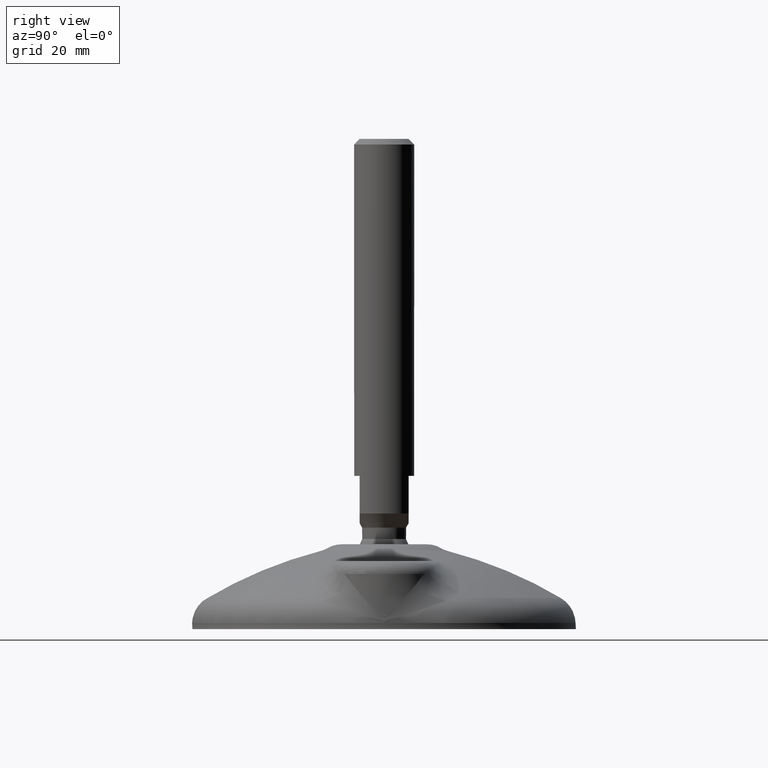
[diagram: clean part render]
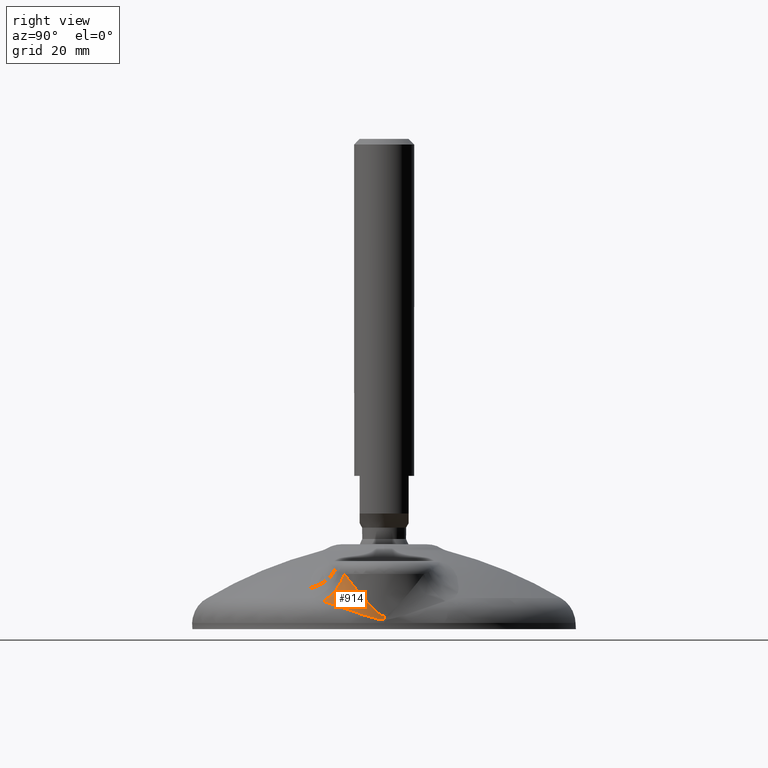
[diagram: same view with one face highlighted and labeled with its STEP entity id]
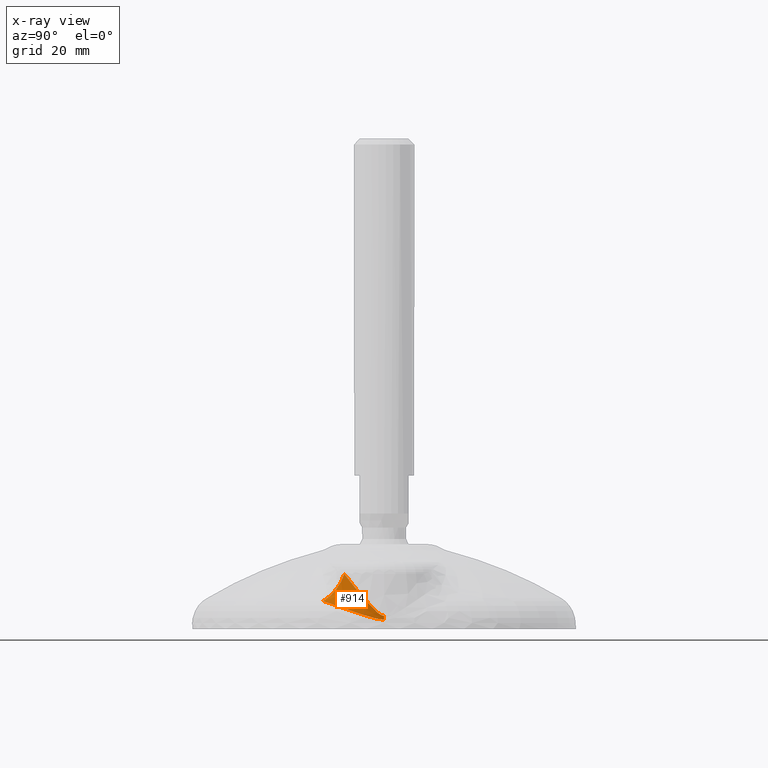
[diagram: x-ray of the same camera — body ghosted, the highlighted face saturated]
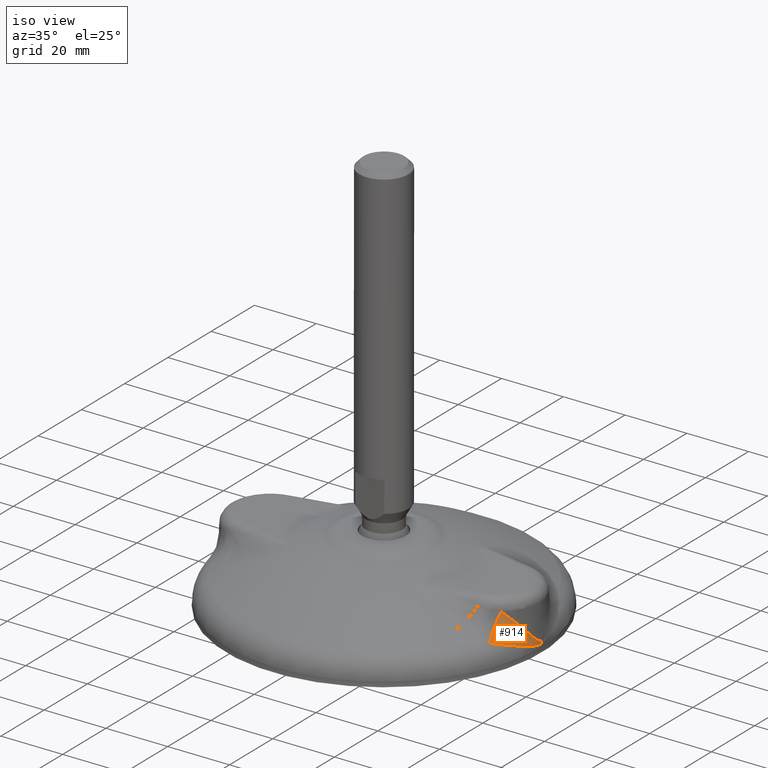
[diagram: same view with one face highlighted and labeled with its STEP entity id]
A machine part, right view. The second image highlights one B-rep face of the part: STEP entity #914.
The next image is the same camera in x-ray: the body ghosted, the highlighted face saturated — about 0% of this face is hidden behind the body in this view.
A second angle (iso view) of the same face is appended — the face is thin or edge-on in the first view.
In plain terms, the highlighted face is a freeform B-spline surface patch.
Its self-contained STEP definition (entity closure, byte-faithful):
#23=(
BOUNDED_SURFACE()
B_SPLINE_SURFACE(2,3,((#3523,#3524,#3525,#3526,#3527,#3528,#3529,#3530,
#3531,#3532,#3533,#3534,#3535,#3536,#3537,#3538,#3539,#3540,#3541,#3542,
#3543,#3544,#3545,#3546,#3547,#3548,#3549,#3550,#3551,#3552,#3553,#3554,
#3555,#3556),(#3557,#3558,#3559,#3560,#3561,#3562,#3563,#3564,#3565,#3566,
#3567,#3568,#3569,#3570,#3571,#3572,#3573,#3574,#3575,#3576,#3577,#3578,
#3579,#3580,#3581,#3582,#3583,#3584,#3585,#3586,#3587,#3588,#3589,#3590),
(#3591,#3592,#3593,#3594,#3595,#3596,#3597,#3598,#3599,#3600,#3601,#3602,
#3603,#3604,#3605,#3606,#3607,#3608,#3609,#3610,#3611,#3612,#3613,#3614,
#3615,#3616,#3617,#3618,#3619,#3620,#3621,#3622,#3623,#3624)),
 .UNSPECIFIED.,.F.,.F.,.F.)
B_SPLINE_SURFACE_WITH_KNOTS((3,3),(4,2,2,2,2,2,2,2,2,2,2,2,2,2,2,2,4),(0.,
1.),(0.004938760021744,0.007926146395648,0.008672992989124,0.0094198395826,
0.010913532769552,0.013900919143456,0.01688830551736,0.017635152110836,
0.018381998704312,0.019875691891264,0.021369385078216,0.022863078265168,
0.02435677145212,0.025850464639072,0.026597311232548,0.027344157826024,
0.028837851012976),.UNSPECIFIED.)
GEOMETRIC_REPRESENTATION_ITEM()
RATIONAL_B_SPLINE_SURFACE(((1.,1.,1.,1.,1.,1.,1.,1.,1.,1.,1.,1.,1.,1.,1.,
1.,1.,1.,1.,1.,1.,1.,1.,1.,1.,1.,1.,1.,1.,1.,1.,1.,1.,1.),(0.889273071491304,
0.897892649724442,0.906077867738581,0.915756349524184,0.917664378729195,
0.921424749988173,0.9232795093277,0.928735956328118,0.932232484797463,0.942312141268301,
0.94848629618452,0.959789795934368,0.964919071416908,0.97068784951622,0.971809392887302,
0.973988023595005,0.975045863244109,0.978112955544814,0.980018338517154,
0.983556040016176,0.98518836081826,0.988183194136766,0.989545725659964,
0.992001609314746,0.993094781561663,0.994999177929724,0.995812466564399,
0.996819017359626,0.997118900914692,0.997644307935613,0.997867514385628,
0.998411726385908,0.998609681180797,0.998610848301209),(1.,1.,1.,1.,1.,
1.,1.,1.,1.,1.,1.,1.,1.,1.,1.,1.,1.,1.,1.,1.,1.,1.,1.,1.,1.,1.,1.,1.,1.,
1.,1.,1.,1.,1.)))
REPRESENTATION_ITEM('')
SURFACE()
);
#60=B_SPLINE_CURVE_WITH_KNOTS('',3,(#2000,#2001,#2002,#2003,#2004,#2005,
#2006,#2007,#2008,#2009,#2010,#2011,#2012,#2013,#2014,#2015,#2016,#2017,
#2018,#2019,#2020,#2021,#2022,#2023,#2024,#2025,#2026,#2027,#2028,#2029,
#2030,#2031,#2032,#2033,#2034,#2035,#2036,#2037,#2038,#2039,#2040,#2041,
#2042,#2043,#2044,#2045,#2046,#2047,#2048,#2049,#2050,#2051,#2052,#2053,
#2054,#2055,#2056,#2057,#2058,#2059,#2060,#2061,#2062,#2063,#2064,#2065,
#2066,#2067,#2068,#2069,#2070,#2071,#2072,#2073,#2074,#2075),
 .UNSPECIFIED.,.F.,.F.,(4,2,2,2,2,2,2,2,2,2,2,2,2,2,2,2,2,2,2,2,2,2,2,2,
2,2,2,2,2,2,2,2,2,2,2,2,2,4),(5.6717920746663E-15,0.0182228025467216,0.036750334721188,
0.0558525533228486,0.0625,0.0687576017251878,0.0945705334319767,0.102101619982048,
0.125,0.134842332414048,0.159775744032219,0.185974091822394,0.1875,0.198937669194411,
0.236816819557287,0.250000000000001,0.262062297847087,0.310398075511013,
0.324602916335429,0.375000000000001,0.386787666647563,0.437500000000001,
0.448790401114524,0.479746953367742,0.500000000000001,0.51064652946989,
0.582979699795037,0.633748616733815,0.706626075147189,0.750000000000001,
0.756430156037375,0.812500000000001,0.817755172613906,0.848401071251367,
0.875000000000001,0.878950178210172,0.95967215176537,1.),.UNSPECIFIED.);
#78=B_SPLINE_CURVE_WITH_KNOTS('',3,(#3184,#3185,#3186,#3187,#3188,#3189,
#3190,#3191,#3192,#3193,#3194,#3195,#3196,#3197,#3198,#3199,#3200,#3201,
#3202,#3203,#3204,#3205,#3206,#3207,#3208,#3209,#3210,#3211,#3212,#3213,
#3214,#3215,#3216,#3217,#3218,#3219,#3220,#3221,#3222,#3223,#3224,#3225,
#3226,#3227,#3228,#3229,#3230,#3231,#3232,#3233,#3234,#3235,#3236,#3237,
#3238,#3239,#3240,#3241,#3242,#3243,#3244,#3245,#3246,#3247,#3248,#3249,
#3250,#3251,#3252,#3253,#3254,#3255,#3256,#3257,#3258,#3259,#3260,#3261,
#3262,#3263,#3264,#3265,#3266,#3267,#3268,#3269,#3270,#3271,#3272,#3273,
#3274,#3275,#3276,#3277,#3278,#3279,#3280,#3281,#3282,#3283,#3284,#3285,
#3286,#3287,#3288,#3289,#3290,#3291,#3292,#3293,#3294,#3295,#3296,#3297,
#3298,#3299,#3300,#3301,#3302,#3303,#3304,#3305,#3306,#3307,#3308,#3309,
#3310,#3311,#3312,#3313),.UNSPECIFIED.,.F.,.F.,(4,3,3,3,3,3,3,3,3,3,3,3,
3,3,3,3,3,3,3,3,3,3,3,3,3,3,3,3,3,3,3,3,3,3,3,3,3,3,3,3,3,3,3,4),(0.,0.06079778491499,
0.12159556982998,0.125,0.15259114844097,0.18379743749732,0.1875,0.246592312845374,
0.249999999999999,0.332112251634396,0.373393482752956,0.375,0.461666136124352,
0.5,0.501690407190631,0.533980432296417,0.5625,0.56633593652697,0.625,0.63109356917108,
0.686802034399033,0.69580971035701,0.746765388936032,0.75,0.7603018303488,
0.793219768292733,0.8125,0.824228626860565,0.847172923508071,0.868323652997258,
0.875,0.88676343435583,0.901585864464345,0.90625,0.917003069758738,0.92843468534495,
0.9375,0.946034856751167,0.953125,0.961073755391126,0.96875,0.980765588564344,
0.992587337131194,1.),.UNSPECIFIED.);
#166=FACE_OUTER_BOUND('',#233,.T.);
#233=EDGE_LOOP('',(#671,#672,#673,#674));
#308=CIRCLE('',#1030,10.);
#311=CIRCLE('',#1033,10.);
#369=VERTEX_POINT('',#1997);
#370=VERTEX_POINT('',#1999);
#397=VERTEX_POINT('',#3181);
#398=VERTEX_POINT('',#3183);
#456=EDGE_CURVE('',#369,#370,#60,.T.);
#490=EDGE_CURVE('',#397,#398,#78,.T.);
#504=EDGE_CURVE('',#397,#370,#308,.T.);
#507=EDGE_CURVE('',#398,#369,#311,.T.);
#671=ORIENTED_EDGE('',*,*,#504,.T.);
#672=ORIENTED_EDGE('',*,*,#456,.F.);
#673=ORIENTED_EDGE('',*,*,#507,.F.);
#674=ORIENTED_EDGE('',*,*,#490,.F.);
#914=ADVANCED_FACE('',(#166),#23,.T.);
#1030=AXIS2_PLACEMENT_3D('',#3490,#1207,#1208);
#1033=AXIS2_PLACEMENT_3D('',#3625,#1213,#1214);
#1207=DIRECTION('center_axis',(-0.717326152652792,-0.553351692044913,0.423373470627738));
#1208=DIRECTION('ref_axis',(0.610793629850487,-0.791789834320994,-8.32667268468867E-17));
#1213=DIRECTION('center_axis',(0.,-1.,0.));
#1214=DIRECTION('ref_axis',(0.,0.,-1.));
#1997=CARTESIAN_POINT('',(50.8753258163308,-2.93914908653294E-13,2.46930815619614));
#1999=CARTESIAN_POINT('',(45.3902886219601,-16.1682992003728,7.40400009036724));
#2000=CARTESIAN_POINT('Ctrl Pts',(50.8753258163309,-2.56337485959878E-13,
2.46930815619605));
#2001=CARTESIAN_POINT('Ctrl Pts',(50.8753258162156,-0.110607063535236,2.46930815701174));
#2002=CARTESIAN_POINT('Ctrl Pts',(50.8745793224683,-0.220855413109573,2.47215559617027));
#2003=CARTESIAN_POINT('Ctrl Pts',(50.8715841670876,-0.442487970266119,2.48321720303667));
#2004=CARTESIAN_POINT('Ctrl Pts',(50.8693105987794,-0.553860410081104,2.49152017498496));
#2005=CARTESIAN_POINT('Ctrl Pts',(50.8631763983061,-0.779385520827623,2.51337330462061));
#2006=CARTESIAN_POINT('Ctrl Pts',(50.8592687185955,-0.893517329397442,2.52707811984808));
#2007=CARTESIAN_POINT('Ctrl Pts',(50.8529685528191,-1.04696684067702,2.54860682546778));
#2008=CARTESIAN_POINT('Ctrl Pts',(50.8512494341055,-1.08654516021331,2.55443860621557));
#2009=CARTESIAN_POINT('Ctrl Pts',(50.8477348238571,-1.16331720237144,2.56626131758981));
#2010=CARTESIAN_POINT('Ctrl Pts',(50.8459504829556,-1.20049906948161,2.57222019054012));
#2011=CARTESIAN_POINT('Ctrl Pts',(50.8364009988337,-1.3908741779082,2.60385052910934));
#2012=CARTESIAN_POINT('Ctrl Pts',(50.8273476532609,-1.54360911942427,2.63290110780792));
#2013=CARTESIAN_POINT('Ctrl Pts',(50.8139215664059,-1.74059740136178,2.67401475086999));
#2014=CARTESIAN_POINT('Ctrl Pts',(50.8107750285801,-1.78506891560119,2.68353675670575));
#2015=CARTESIAN_POINT('Ctrl Pts',(50.797602728526,-1.96470043085678,2.72287908007077));
#2016=CARTESIAN_POINT('Ctrl Pts',(50.7867017782433,-2.09896831495637,2.75429451485293));
#2017=CARTESIAN_POINT('Ctrl Pts',(50.769695460389,-2.29034910216355,2.80129961924424));
#2018=CARTESIAN_POINT('Ctrl Pts',(50.7644013762382,-2.34777699644258,2.81569595633586));
#2019=CARTESIAN_POINT('Ctrl Pts',(50.7450611825956,-2.55039129654155,2.86737477982236));
#2020=CARTESIAN_POINT('Ctrl Pts',(50.7300441234331,-2.69515702975366,2.90587191658117));
#2021=CARTESIAN_POINT('Ctrl Pts',(50.696906600334,-2.99110991831737,2.98715207029441));
#2022=CARTESIAN_POINT('Ctrl Pts',(50.6786671884711,-3.1422504996227,3.03005322666432));
#2023=CARTESIAN_POINT('Ctrl Pts',(50.6580597942186,-3.30177686296856,3.07636575750355));
#2024=CARTESIAN_POINT('Ctrl Pts',(50.6569214085714,-3.3105556654697,3.07891765722394));
#2025=CARTESIAN_POINT('Ctrl Pts',(50.6472146298191,-3.38512619402529,3.10062178367248));
#2026=CARTESIAN_POINT('Ctrl Pts',(50.6384154546784,-3.45083360254823,3.11993621155986));
#2027=CARTESIAN_POINT('Ctrl Pts',(50.5994664433713,-3.73388133434326,3.20380443264302));
#2028=CARTESIAN_POINT('Ctrl Pts',(50.5669425547937,-3.95069357260784,3.26984880031307));
#2029=CARTESIAN_POINT('Ctrl Pts',(50.5196668202704,-4.24195229667906,3.36027913953371));
#2030=CARTESIAN_POINT('Ctrl Pts',(50.5071530309299,-4.31705827698123,3.38375173173771));
#2031=CARTESIAN_POINT('Ctrl Pts',(50.4826053789715,-4.46069911496603,3.4288917167885));
#2032=CARTESIAN_POINT('Ctrl Pts',(50.47062079107,-4.52924838336949,3.4505448057102));
#2033=CARTESIAN_POINT('Ctrl Pts',(50.4093428244308,-4.87205151769529,3.5592981396887));
#2034=CARTESIAN_POINT('Ctrl Pts',(50.3562343033951,-5.14501326561028,3.6474485191062));
#2035=CARTESIAN_POINT('Ctrl Pts',(50.2822484624008,-5.49669262189358,3.76235738193936));
#2036=CARTESIAN_POINT('Ctrl Pts',(50.2650925267928,-5.57646962300884,3.78851342011694));
#2037=CARTESIAN_POINT('Ctrl Pts',(50.1854725241523,-5.93885965642484,3.90767219248614));
#2038=CARTESIAN_POINT('Ctrl Pts',(50.1189358735009,-6.22036604798935,4.00121095722687));
#2039=CARTESIAN_POINT('Ctrl Pts',(50.0313786004368,-6.56625234606472,4.11695000518255));
#2040=CARTESIAN_POINT('Ctrl Pts',(50.0145389268475,-6.63175499554399,4.13890465420528));
#2041=CARTESIAN_POINT('Ctrl Pts',(49.9239658593318,-6.97873647423913,4.25537385692975));
#2042=CARTESIAN_POINT('Ctrl Pts',(49.8459820948976,-7.25913842180181,4.35010060300974));
#2043=CARTESIAN_POINT('Ctrl Pts',(49.7450924749261,-7.60063244807561,4.46596638376699));
#2044=CARTESIAN_POINT('Ctrl Pts',(49.7264970974872,-7.66275971469958,4.48706620930655));
#2045=CARTESIAN_POINT('Ctrl Pts',(49.6560701349726,-7.89504181360947,4.56602364901974));
#2046=CARTESIAN_POINT('Ctrl Pts',(49.6027333488476,-8.06495285647313,4.62392222990755));
#2047=CARTESIAN_POINT('Ctrl Pts',(49.5119157532824,-8.34464714555037,4.71941386647437));
#2048=CARTESIAN_POINT('Ctrl Pts',(49.4753125695061,-8.45496369148986,4.75712515107886));
#2049=CARTESIAN_POINT('Ctrl Pts',(49.4184056189506,-8.62286489780858,4.8145832604225));
#2050=CARTESIAN_POINT('Ctrl Pts',(49.3986079966707,-8.68063542474916,4.83436436223663));
#2051=CARTESIAN_POINT('Ctrl Pts',(49.242821600074,-9.13028144342915,4.98840623112051));
#2052=CARTESIAN_POINT('Ctrl Pts',(49.0982628381228,-9.51858448585812,5.12188513203297));
#2053=CARTESIAN_POINT('Ctrl Pts',(48.8371755137092,-10.1732877779369,5.34734660696826));
#2054=CARTESIAN_POINT('Ctrl Pts',(48.7251394282061,-10.4415192918967,5.43983696380191));
#2055=CARTESIAN_POINT('Ctrl Pts',(48.4416123540688,-11.0905206264919,5.66372745842911));
#2056=CARTESIAN_POINT('Ctrl Pts',(48.2654786362565,-11.4694189585535,5.79454016400093));
#2057=CARTESIAN_POINT('Ctrl Pts',(47.9697805389329,-12.0679494580076,6.00109884796752));
#2058=CARTESIAN_POINT('Ctrl Pts',(47.8561827805206,-12.2899600409825,6.07769867442348));
#2059=CARTESIAN_POINT('Ctrl Pts',(47.7219446451285,-12.5433765722305,6.16507619477046));
#2060=CARTESIAN_POINT('Ctrl Pts',(47.7045404932923,-12.5760661961865,6.1763464285178));
#2061=CARTESIAN_POINT('Ctrl Pts',(47.5346664720749,-12.8935241696959,6.28578318771133));
#2062=CARTESIAN_POINT('Ctrl Pts',(47.3767111082,-13.1761275104671,6.38311585242441));
#2063=CARTESIAN_POINT('Ctrl Pts',(47.197709008022,-13.4827754112637,6.48855637798598));
#2064=CARTESIAN_POINT('Ctrl Pts',(47.1823186149606,-13.5090351567465,6.49758436435593));
#2065=CARTESIAN_POINT('Ctrl Pts',(47.0768242660581,-13.6883139820678,6.55920971632771));
#2066=CARTESIAN_POINT('Ctrl Pts',(46.9849781841487,-13.8408125138132,6.61157990775486));
#2067=CARTESIAN_POINT('Ctrl Pts',(46.8107826777212,-14.1234181009958,6.70851688602062));
#2068=CARTESIAN_POINT('Ctrl Pts',(46.7286905631573,-14.2539785876478,6.75325452336518));
#2069=CARTESIAN_POINT('Ctrl Pts',(46.6329775174884,-14.4032110430247,6.80432841927677));
#2070=CARTESIAN_POINT('Ctrl Pts',(46.6205749859045,-14.4224920252269,6.8109260236349));
#2071=CARTESIAN_POINT('Ctrl Pts',(46.3541626363139,-14.8354447055445,6.95220484496787));
#2072=CARTESIAN_POINT('Ctrl Pts',(46.0892257766347,-15.2226144682464,7.08416014710487));
#2073=CARTESIAN_POINT('Ctrl Pts',(45.6749019985155,-15.7931682123141,7.27749095906662));
#2074=CARTESIAN_POINT('Ctrl Pts',(45.5340360438295,-15.9815780242387,7.34114240437217));
#2075=CARTESIAN_POINT('Ctrl Pts',(45.3902886219601,-16.1682992003728,7.40400009036723));
#3181=CARTESIAN_POINT('',(45.3161728056289,-10.5495621638012,14.6221482384588));
#3183=CARTESIAN_POINT('',(50.7831052585691,-1.426071E-13,3.51909138657364));
#3184=CARTESIAN_POINT('Ctrl Pts',(45.3161728056289,-10.5495621638012,14.6221482384588));
#3185=CARTESIAN_POINT('Ctrl Pts',(45.5266738129038,-10.3911987942194,14.4079422442315));
#3186=CARTESIAN_POINT('Ctrl Pts',(45.7301097752934,-10.2287882647314,14.1907172531775));
#3187=CARTESIAN_POINT('Ctrl Pts',(45.9269295673967,-10.062545485196,13.9707121817628));
#3188=CARTESIAN_POINT('Ctrl Pts',(46.1237493595,-9.89630270566064,13.750707110348));
#3189=CARTESIAN_POINT('Ctrl Pts',(46.3139528407942,-9.72622757763782,13.5279217922828));
#3190=CARTESIAN_POINT('Ctrl Pts',(46.4979554434809,-9.55250554004482,13.3025613020265));
#3191=CARTESIAN_POINT('Ctrl Pts',(46.50825884537,-9.54277780824002,13.2899420256296));
#3192=CARTESIAN_POINT('Ctrl Pts',(46.5185427353206,-9.53303859170578,13.2773146156706));
#3193=CARTESIAN_POINT('Ctrl Pts',(46.5288071714124,-9.52328791065603,13.2646790942083));
#3194=CARTESIAN_POINT('Ctrl Pts',(46.6119951252628,-9.44426367611207,13.1622747178854));
#3195=CARTESIAN_POINT('Ctrl Pts',(46.6938602235377,-9.36453046229391,13.059394399014));
#3196=CARTESIAN_POINT('Ctrl Pts',(46.7745001093898,-9.28403463628121,12.9559664685135));
#3197=CARTESIAN_POINT('Ctrl Pts',(46.8657058666548,-9.19299181435025,12.838986854468));
#3198=CARTESIAN_POINT('Ctrl Pts',(46.9554610901746,-9.10084771120415,12.7211471595324));
#3199=CARTESIAN_POINT('Ctrl Pts',(47.0433943199419,-9.00804447608288,12.6030089647891));
#3200=CARTESIAN_POINT('Ctrl Pts',(47.0538274181769,-8.99703356165256,12.5889921091097));
#3201=CARTESIAN_POINT('Ctrl Pts',(47.0642353238445,-8.98601302567955,12.5749705861175));
#3202=CARTESIAN_POINT('Ctrl Pts',(47.074618297006,-8.97498272567241,12.5609442012302));
#3203=CARTESIAN_POINT('Ctrl Pts',(47.2403289090158,-8.79894087942992,12.3370853134329));
#3204=CARTESIAN_POINT('Ctrl Pts',(47.3998138661967,-8.62028122798804,12.1118223041733));
#3205=CARTESIAN_POINT('Ctrl Pts',(47.5534156799595,-8.43911833474292,11.8852580355037));
#3206=CARTESIAN_POINT('Ctrl Pts',(47.5622734636962,-8.42867118122192,11.8721927126069));
#3207=CARTESIAN_POINT('Ctrl Pts',(47.5711117216066,-8.41821572880615,11.8591230622849));
#3208=CARTESIAN_POINT('Ctrl Pts',(47.5799305012577,-8.40775198919454,11.8460490996881));
#3209=CARTESIAN_POINT('Ctrl Pts',(47.7924294252967,-8.155615809716,11.5310165107523));
#3210=CARTESIAN_POINT('Ctrl Pts',(47.9936236955726,-7.89866804872222,11.2134810250002));
#3211=CARTESIAN_POINT('Ctrl Pts',(48.1841410919153,-7.63707769617979,10.8936672611608));
#3212=CARTESIAN_POINT('Ctrl Pts',(48.2799220809149,-7.50556538727647,10.7328836309818));
#3213=CARTESIAN_POINT('Ctrl Pts',(48.3730038131824,-7.37287933273953,10.5715238221766));
#3214=CARTESIAN_POINT('Ctrl Pts',(48.4634620070917,-7.23903901967945,10.4096143588597));
#3215=CARTESIAN_POINT('Ctrl Pts',(48.4669823151037,-7.23383043540387,10.4033134240709));
#3216=CARTESIAN_POINT('Ctrl Pts',(48.4704986479544,-7.22862010519551,10.3970116482334));
#3217=CARTESIAN_POINT('Ctrl Pts',(48.4740110082229,-7.22340802875087,10.3907090334042));
#3218=CARTESIAN_POINT('Ctrl Pts',(48.6634908869516,-6.94223424896592,10.0507044204867));
#3219=CARTESIAN_POINT('Ctrl Pts',(48.8414088516448,-6.65598623149996,9.70826685121018));
#3220=CARTESIAN_POINT('Ctrl Pts',(49.0081607085592,-6.36459306011355,9.36368603075436));
#3221=CARTESIAN_POINT('Ctrl Pts',(49.0819178098888,-6.2357050461124,9.21127224082193));
#3222=CARTESIAN_POINT('Ctrl Pts',(49.1534897942521,-6.10581018676496,9.058438761366));
#3223=CARTESIAN_POINT('Ctrl Pts',(49.2229083938089,-5.97490125232665,8.90520895419934));
#3224=CARTESIAN_POINT('Ctrl Pts',(49.2259695436119,-5.96912856515871,8.89845198420817));
#3225=CARTESIAN_POINT('Ctrl Pts',(49.2290264755922,-5.96335396287111,8.8916943114592));
#3226=CARTESIAN_POINT('Ctrl Pts',(49.2320791957991,-5.957577438957,8.88493593089344));
#3227=CARTESIAN_POINT('Ctrl Pts',(49.2903920169154,-5.84723473381194,8.75583787726922));
#3228=CARTESIAN_POINT('Ctrl Pts',(49.347164313399,-5.73618678685562,8.62648563440874));
#3229=CARTESIAN_POINT('Ctrl Pts',(49.4024273041572,-5.62437670387027,8.4968543346082));
#3230=CARTESIAN_POINT('Ctrl Pts',(49.4512373190539,-5.52562251519444,8.38235988565521));
#3231=CARTESIAN_POINT('Ctrl Pts',(49.4988998584008,-5.42620530099922,8.26756942435099));
#3232=CARTESIAN_POINT('Ctrl Pts',(49.5452930729769,-5.32638788277365,8.15282284670933));
#3233=CARTESIAN_POINT('Ctrl Pts',(49.5515330492712,-5.31296224867642,8.13738921205205));
#3234=CARTESIAN_POINT('Ctrl Pts',(49.5577504262714,-5.29952857860212,8.12195546539641));
#3235=CARTESIAN_POINT('Ctrl Pts',(49.5639448675995,-5.28608756726741,8.10652250143842));
#3236=CARTESIAN_POINT('Ctrl Pts',(49.6586782128196,-5.08053037503093,7.87050181370209));
#3237=CARTESIAN_POINT('Ctrl Pts',(49.7481545309293,-4.87307576338037,7.634428470109));
#3238=CARTESIAN_POINT('Ctrl Pts',(49.8324692893015,-4.66353771546602,7.39858434936639));
#3239=CARTESIAN_POINT('Ctrl Pts',(49.8412272542611,-4.64177252373963,7.3740866862613));
#3240=CARTESIAN_POINT('Ctrl Pts',(49.8499293288888,-4.6199853074884,7.34959207761379));
#3241=CARTESIAN_POINT('Ctrl Pts',(49.858575710908,-4.59817562032349,7.32510057073166));
#3242=CARTESIAN_POINT('Ctrl Pts',(49.9376224335331,-4.39878768117852,7.10119497103828));
#3243=CARTESIAN_POINT('Ctrl Pts',(50.0120187176778,-4.19752912081963,6.87753255670291));
#3244=CARTESIAN_POINT('Ctrl Pts',(50.0818445509376,-3.99393507788985,6.65441961405003));
#3245=CARTESIAN_POINT('Ctrl Pts',(50.0931349082814,-3.96101532039551,6.61834378461865));
#3246=CARTESIAN_POINT('Ctrl Pts',(50.1043056760579,-3.92803445547774,6.58228234735731));
#3247=CARTESIAN_POINT('Ctrl Pts',(50.1153570804956,-3.89499046143843,6.54623663331845));
#3248=CARTESIAN_POINT('Ctrl Pts',(50.1778739622085,-3.70806331762354,6.34232900750194));
#3249=CARTESIAN_POINT('Ctrl Pts',(50.2365754752524,-3.51913019175488,6.13888991517753));
#3250=CARTESIAN_POINT('Ctrl Pts',(50.2914362618722,-3.32763057307416,5.93663023283404));
#3251=CARTESIAN_POINT('Ctrl Pts',(50.294918764948,-3.31547438552835,5.92379100814806));
#3252=CARTESIAN_POINT('Ctrl Pts',(50.298385780352,-3.30330784776635,5.91095654700394));
#3253=CARTESIAN_POINT('Ctrl Pts',(50.3018372970273,-3.29113081289643,5.89812703603414));
#3254=CARTESIAN_POINT('Ctrl Pts',(50.3128299445299,-3.25234848485127,5.85726665348575));
#3255=CARTESIAN_POINT('Ctrl Pts',(50.3236659103615,-3.21345776609648,5.81645528571401));
#3256=CARTESIAN_POINT('Ctrl Pts',(50.3343456500066,-3.17445050241097,5.77569518695595));
#3257=CARTESIAN_POINT('Ctrl Pts',(50.3684711398461,-3.0498087016933,5.64545246735392));
#3258=CARTESIAN_POINT('Ctrl Pts',(50.4010025678693,-2.92397115381962,5.51568147154008));
#3259=CARTESIAN_POINT('Ctrl Pts',(50.4318831995174,-2.79676222673748,5.38698465755576));
#3260=CARTESIAN_POINT('Ctrl Pts',(50.4499701688305,-2.72225520282992,5.31160616945511));
#3261=CARTESIAN_POINT('Ctrl Pts',(50.467490462791,-2.64727750909529,5.23659684434406));
#3262=CARTESIAN_POINT('Ctrl Pts',(50.4844293288956,-2.57179200140664,5.16208538928514));
#3263=CARTESIAN_POINT('Ctrl Pts',(50.494733646966,-2.52587235860864,5.11675828603801));
#3264=CARTESIAN_POINT('Ctrl Pts',(50.5048230973475,-2.47976287733208,5.07161711797331));
#3265=CARTESIAN_POINT('Ctrl Pts',(50.5146962169199,-2.43344319790898,5.02668016008204));
#3266=CARTESIAN_POINT('Ctrl Pts',(50.5340106504847,-2.34282965227098,4.93877158352391));
#3267=CARTESIAN_POINT('Ctrl Pts',(50.5525143950461,-2.25138949093478,4.85153627482896));
#3268=CARTESIAN_POINT('Ctrl Pts',(50.5701851392075,-2.15880163098405,4.76537694734106));
#3269=CARTESIAN_POINT('Ctrl Pts',(50.5864745524492,-2.07345141040914,4.68595273762727));
#3270=CARTESIAN_POINT('Ctrl Pts',(50.6020560271164,-1.98712599029354,4.6074425336839));
#3271=CARTESIAN_POINT('Ctrl Pts',(50.6169016599308,-1.89955887575879,4.53020313740201));
#3272=CARTESIAN_POINT('Ctrl Pts',(50.6215877676224,-1.87191782238701,4.50582208652034));
#3273=CARTESIAN_POINT('Ctrl Pts',(50.6262004785341,-1.84415292449517,4.48156800534506));
#3274=CARTESIAN_POINT('Ctrl Pts',(50.6307386924124,-1.81625543590199,4.45745314669176));
#3275=CARTESIAN_POINT('Ctrl Pts',(50.6387348287767,-1.7671012688667,4.41496380983558));
#3276=CARTESIAN_POINT('Ctrl Pts',(50.6465001614257,-1.71753270031739,4.372909137809));
#3277=CARTESIAN_POINT('Ctrl Pts',(50.6540324702853,-1.66746670436539,4.33133104428625));
#3278=CARTESIAN_POINT('Ctrl Pts',(50.6635235014118,-1.6043814094282,4.27894086921965));
#3279=CARTESIAN_POINT('Ctrl Pts',(50.6726430805495,-1.54049797549922,4.22733446859853));
#3280=CARTESIAN_POINT('Ctrl Pts',(50.6813682049919,-1.47558475118087,4.17680159083148));
#3281=CARTESIAN_POINT('Ctrl Pts',(50.6841137172101,-1.45515867569522,4.16090054159821));
#3282=CARTESIAN_POINT('Ctrl Pts',(50.6868201126226,-1.43463051390134,4.1451061382485));
#3283=CARTESIAN_POINT('Ctrl Pts',(50.6894865047709,-1.4139926928648,4.12942844216418));
#3284=CARTESIAN_POINT('Ctrl Pts',(50.6956338177201,-1.3664126155755,4.09328383222258));
#3285=CARTESIAN_POINT('Ctrl Pts',(50.7015695297023,-1.31824374442211,4.05775526429629));
#3286=CARTESIAN_POINT('Ctrl Pts',(50.7072834457054,-1.26936316238053,4.02296251939937));
#3287=CARTESIAN_POINT('Ctrl Pts',(50.7133579242221,-1.21739809230596,3.98597426453126));
#3288=CARTESIAN_POINT('Ctrl Pts',(50.719161322917,-1.16479371188142,3.94993990184108));
#3289=CARTESIAN_POINT('Ctrl Pts',(50.7246694760438,-1.1114427678586,3.91514852557044));
#3290=CARTESIAN_POINT('Ctrl Pts',(50.7290374624309,-1.06913526625804,3.88755883181306));
#3291=CARTESIAN_POINT('Ctrl Pts',(50.7332196797686,-1.02635821017804,3.86075147175655));
#3292=CARTESIAN_POINT('Ctrl Pts',(50.7372011666727,-0.983056005372021,3.83489383247782));
#3293=CARTESIAN_POINT('Ctrl Pts',(50.740949676424,-0.942287633937374,3.8105492558619));
#3294=CARTESIAN_POINT('Ctrl Pts',(50.7445221264844,-0.901034766644525,3.78703434380394));
#3295=CARTESIAN_POINT('Ctrl Pts',(50.747905471629,-0.85921697364011,3.76449260409549));
#3296=CARTESIAN_POINT('Ctrl Pts',(50.7507161106865,-0.824477768121422,3.7457665530005));
#3297=CARTESIAN_POINT('Ctrl Pts',(50.7533985243558,-0.789339962902314,3.72772039057156));
#3298=CARTESIAN_POINT('Ctrl Pts',(50.755941217515,-0.753746196606631,3.71046561420942));
#3299=CARTESIAN_POINT('Ctrl Pts',(50.7587918293076,-0.713842046323085,3.69112129466357));
#3300=CARTESIAN_POINT('Ctrl Pts',(50.7614766092238,-0.67321802348348,3.6726987329621));
#3301=CARTESIAN_POINT('Ctrl Pts',(50.7639563879783,-0.632076676198862,3.6555266944505));
#3302=CARTESIAN_POINT('Ctrl Pts',(50.7663511513543,-0.59234579636227,3.63894337271497));
#3303=CARTESIAN_POINT('Ctrl Pts',(50.7685546842282,-0.552132352264656,3.62352705001638));
#3304=CARTESIAN_POINT('Ctrl Pts',(50.7705397131243,-0.51162637750249,3.60952889643887));
#3305=CARTESIAN_POINT('Ctrl Pts',(50.7736468692558,-0.448222571092084,3.58761765433835));
#3306=CARTESIAN_POINT('Ctrl Pts',(50.7762201881313,-0.384078029238763,3.56921015467034));
#3307=CARTESIAN_POINT('Ctrl Pts',(50.7782126686292,-0.319089269615485,3.55482973939652));
#3308=CARTESIAN_POINT('Ctrl Pts',(50.7801730056817,-0.255148933124793,3.54068131439481));
#3309=CARTESIAN_POINT('Ctrl Pts',(50.7815711549985,-0.190391457067799,3.53043104425487));
#3310=CARTESIAN_POINT('Ctrl Pts',(50.7823583511691,-0.124701800998945,3.52462472872847));
#3311=CARTESIAN_POINT('Ctrl Pts',(50.7828519515694,-0.0835120166237579,
3.52098395940711));
#3312=CARTESIAN_POINT('Ctrl Pts',(50.7831052585691,-0.0419553935382916,
3.51909138657368));
#3313=CARTESIAN_POINT('Ctrl Pts',(50.7831052585691,-1.45106149318508E-13,
3.51909138657363));
#3490=CARTESIAN_POINT('Origin',(51.5487110268673,-18.3619670325849,14.9711432054838));
#3523=CARTESIAN_POINT('Ctrl Pts',(45.3161728056289,-10.5495621638012,14.6221482384588));
#3524=CARTESIAN_POINT('Ctrl Pts',(45.730537694897,-10.2378286431383,14.2004901940265));
#3525=CARTESIAN_POINT('Ctrl Pts',(46.1242238220562,-9.90535608675525,13.7602958152962));
#3526=CARTESIAN_POINT('Ctrl Pts',(46.5913883641749,-9.46429288570551,13.1881277191781));
#3527=CARTESIAN_POINT('Ctrl Pts',(46.6835691501011,-9.37480314852567,13.0725936869029));
#3528=CARTESIAN_POINT('Ctrl Pts',(46.865431097047,-9.19326608952179,12.8393393352976));
#3529=CARTESIAN_POINT('Ctrl Pts',(46.9552295379051,-9.10109208392968,12.7214583348869));
#3530=CARTESIAN_POINT('Ctrl Pts',(47.2197239976841,-8.82194911415898,12.366110571336));
#3531=CARTESIAN_POINT('Ctrl Pts',(47.3896485535612,-8.63227052405308,12.1268162785402));
#3532=CARTESIAN_POINT('Ctrl Pts',(47.8809501026553,-8.05281371126826,11.4021420895575));
#3533=CARTESIAN_POINT('Ctrl Pts',(48.1839142012032,-7.6526528239607,10.9099735657833));
#3534=CARTESIAN_POINT('Ctrl Pts',(48.7430101287651,-6.8254246361959,9.90925628815182));
#3535=CARTESIAN_POINT('Ctrl Pts',(48.9991324020833,-6.39837209207813,9.40065430580104));
#3536=CARTESIAN_POINT('Ctrl Pts',(49.2903160551645,-5.84737838616765,8.75600703938909));
#3537=CARTESIAN_POINT('Ctrl Pts',(49.3471002002897,-5.73631644468249,8.62663676029325));
#3538=CARTESIAN_POINT('Ctrl Pts',(49.4577545498338,-5.51243659175112,8.36707256776044));
#3539=CARTESIAN_POINT('Ctrl Pts',(49.5116634325378,-5.39953045150608,8.23677773767963));
#3540=CARTESIAN_POINT('Ctrl Pts',(49.6685078211186,-5.05920156131555,7.84601244462121));
#3541=CARTESIAN_POINT('Ctrl Pts',(49.7666902756679,-4.82994793682041,7.58537408400026));
#3542=CARTESIAN_POINT('Ctrl Pts',(49.9504618498215,-4.36640088754511,7.06483120574635));
#3543=CARTESIAN_POINT('Ctrl Pts',(50.0360517306592,-4.13211521754743,6.80490608426309));
#3544=CARTESIAN_POINT('Ctrl Pts',(50.1946632984663,-3.65786197323757,6.28757355032557));
#3545=CARTESIAN_POINT('Ctrl Pts',(50.2676876566187,-3.41791416392819,6.03011428507153));
#3546=CARTESIAN_POINT('Ctrl Pts',(50.4010054098145,-2.93097670152116,5.52129363043102));
#3547=CARTESIAN_POINT('Ctrl Pts',(50.4612970138022,-2.68396169221655,5.26974641145121));
#3548=CARTESIAN_POINT('Ctrl Pts',(50.5680975256137,-2.18290625889943,4.78364748567286));
#3549=CARTESIAN_POINT('Ctrl Pts',(50.6147316693203,-1.92868675223187,4.54829241405803));
#3550=CARTESIAN_POINT('Ctrl Pts',(50.67368317077,-1.53685039615596,4.22286348924121));
#3551=CARTESIAN_POINT('Ctrl Pts',(50.6914926787436,-1.40444773127498,4.11911446253821));
#3552=CARTESIAN_POINT('Ctrl Pts',(50.7230742126671,-1.13427859348609,3.92681057626053));
#3553=CARTESIAN_POINT('Ctrl Pts',(50.7367072850959,-0.997629690020021,3.83909389537442));
#3554=CARTESIAN_POINT('Ctrl Pts',(50.7703016753771,-0.582388105548078,3.61530095292452));
#3555=CARTESIAN_POINT('Ctrl Pts',(50.7831052583241,-0.297943608043805,3.51909139359081));
#3556=CARTESIAN_POINT('Ctrl Pts',(50.7831052585691,-1.451677E-13,3.51909138657363));
#3557=CARTESIAN_POINT('Ctrl Pts',(43.7143298432497,-12.0354690268386,9.96603947633567));
#3558=CARTESIAN_POINT('Ctrl Pts',(44.2054447968573,-11.7575091680277,9.79120935277095));
#3559=CARTESIAN_POINT('Ctrl Pts',(44.6914199566798,-11.441634537658,9.58526794899611));
#3560=CARTESIAN_POINT('Ctrl Pts',(45.2820056559418,-10.9999569258946,9.29266457032464));
#3561=CARTESIAN_POINT('Ctrl Pts',(45.3983987707135,-10.9100054815341,9.23286759889069));
#3562=CARTESIAN_POINT('Ctrl Pts',(45.6290482935513,-10.725745050721,9.1100477101798));
#3563=CARTESIAN_POINT('Ctrl Pts',(45.7434792688421,-10.6313096725527,9.04694130622706));
#3564=CARTESIAN_POINT('Ctrl Pts',(46.0812112892442,-10.3433289152145,8.85413695631113));
#3565=CARTESIAN_POINT('Ctrl Pts',(46.3005934605146,-10.1438985440753,8.72015317447635));
#3566=CARTESIAN_POINT('Ctrl Pts',(46.9363809348752,-9.52772689681512,8.30564189858598));
#3567=CARTESIAN_POINT('Ctrl Pts',(47.3362514666791,-9.08854384162328,8.00950125062691));
#3568=CARTESIAN_POINT('Ctrl Pts',(48.0780372857563,-8.16139202207054,7.38666280627091));
#3569=CARTESIAN_POINT('Ctrl Pts',(48.4214605877159,-7.67301130210652,7.05959887681684));
#3570=CARTESIAN_POINT('Ctrl Pts',(48.8136627244185,-7.03150986374097,6.63386130479683));
#3571=CARTESIAN_POINT('Ctrl Pts',(48.8899498842787,-6.90220308021383,6.54823248541923));
#3572=CARTESIAN_POINT('Ctrl Pts',(49.0386726891327,-6.64069438791635,6.37551951144119));
#3573=CARTESIAN_POINT('Ctrl Pts',(49.1111791830503,-6.50837685917803,6.28835843207502));
#3574=CARTESIAN_POINT('Ctrl Pts',(49.3219368067884,-6.10878079249197,6.02597185212435));
#3575=CARTESIAN_POINT('Ctrl Pts',(49.4541458768809,-5.8376836842865,5.84904325697354));
#3576=CARTESIAN_POINT('Ctrl Pts',(49.7012791266883,-5.28699156069128,5.49294688717656));
#3577=CARTESIAN_POINT('Ctrl Pts',(49.8163352942528,-5.00728367950816,5.31367287791396));
#3578=CARTESIAN_POINT('Ctrl Pts',(50.0289672852941,-4.43904632099431,4.95463966518337));
#3579=CARTESIAN_POINT('Ctrl Pts',(50.1266571414365,-4.15041252551876,4.77474576751952));
#3580=CARTESIAN_POINT('Ctrl Pts',(50.3042034858931,-3.56310968541222,4.41748731647443));
#3581=CARTESIAN_POINT('Ctrl Pts',(50.3841465127843,-3.2642702558318,4.23988050028128));
#3582=CARTESIAN_POINT('Ctrl Pts',(50.5248103550267,-2.65700626061973,3.89544333374686));
#3583=CARTESIAN_POINT('Ctrl Pts',(50.5857655443566,-2.34821997825327,3.72792469294411));
#3584=CARTESIAN_POINT('Ctrl Pts',(50.6621507825341,-1.87164952710404,3.49569051973002));
#3585=CARTESIAN_POINT('Ctrl Pts',(50.6850957430252,-1.71056375532687,3.42156032642473));
#3586=CARTESIAN_POINT('Ctrl Pts',(50.7255792474582,-1.38174708757575,3.28402879827442));
#3587=CARTESIAN_POINT('Ctrl Pts',(50.7429454418168,-1.21535363938642,3.22121068456209));
#3588=CARTESIAN_POINT('Ctrl Pts',(50.7855388164162,-0.709730282079884,3.06088624672874));
#3589=CARTESIAN_POINT('Ctrl Pts',(50.8015198384364,-0.363025262941416,2.99176678582066));
#3590=CARTESIAN_POINT('Ctrl Pts',(50.8015198395742,-1.513827E-13,2.99176678080945));
#3591=CARTESIAN_POINT('Ctrl Pts',(45.3902886219601,-16.1682992003728,7.40400009036723));
#3592=CARTESIAN_POINT('Ctrl Pts',(45.8188500411798,-15.6116179660159,7.21659930940891));
#3593=CARTESIAN_POINT('Ctrl Pts',(46.2245198830561,-15.0363975644209,7.02095456896691));
#3594=CARTESIAN_POINT('Ctrl Pts',(46.7040527369558,-14.2930973452499,6.76665763735229));
#3595=CARTESIAN_POINT('Ctrl Pts',(46.7985769056405,-14.1432201705796,6.71530917856439));
#3596=CARTESIAN_POINT('Ctrl Pts',(46.9848691043662,-13.8409895739405,6.61164057785135));
#3597=CARTESIAN_POINT('Ctrl Pts',(47.0767569045879,-13.6884285967603,6.5592490221246));
#3598=CARTESIAN_POINT('Ctrl Pts',(47.3471156837468,-13.2289768581342,6.40131668273401));
#3599=CARTESIAN_POINT('Ctrl Pts',(47.5204160431332,-12.9201551704091,6.29496366375408));
#3600=CARTESIAN_POINT('Ctrl Pts',(48.020359719132,-11.9858743066907,5.97288624637645));
#3601=CARTESIAN_POINT('Ctrl Pts',(48.3271080197156,-11.3526317095523,5.75414468030162));
#3602=CARTESIAN_POINT('Ctrl Pts',(48.8903420548069,-10.0633692198396,5.30938144577394));
#3603=CARTESIAN_POINT('Ctrl Pts',(49.1468164114972,-9.40738168519995,5.08333612029787));
#3604=CARTESIAN_POINT('Ctrl Pts',(49.4365711716471,-8.57106259948969,4.79682622411384));
#3605=CARTESIAN_POINT('Ctrl Pts',(49.4929759720312,-8.40297693159015,4.73932832229269));
#3606=CARTESIAN_POINT('Ctrl Pts',(49.60269113393,-8.06508330233327,4.6239664589467));
#3607=CARTESIAN_POINT('Ctrl Pts',(49.6560395782925,-7.89514336667421,4.56605764558136));
#3608=CARTESIAN_POINT('Ctrl Pts',(49.8109486554683,-7.38422516387479,4.39238418198523));
#3609=CARTESIAN_POINT('Ctrl Pts',(49.9075017065368,-7.04181138180294,4.27654491061415));
#3610=CARTESIAN_POINT('Ctrl Pts',(50.0874128040242,-6.35258539413707,4.04519252026653));
#3611=CARTESIAN_POINT('Ctrl Pts',(50.1707711896189,-6.00578464125232,3.92967024406267));
#3612=CARTESIAN_POINT('Ctrl Pts',(50.3244031534274,-5.3065309213654,3.69974467341448));
#3613=CARTESIAN_POINT('Ctrl Pts',(50.3946784012208,-4.95410666570453,3.58531833331104));
#3614=CARTESIAN_POINT('Ctrl Pts',(50.5220945740492,-4.24133749269217,3.35917582012786));
#3615=CARTESIAN_POINT('Ctrl Pts',(50.5792296724534,-3.88095894326144,3.24737705615255));
#3616=CARTESIAN_POINT('Ctrl Pts',(50.6795470241224,-3.15203681872268,3.03133308911822));
#3617=CARTESIAN_POINT('Ctrl Pts',(50.7228422119582,-2.78322761976388,2.92673083509099));
#3618=CARTESIAN_POINT('Ctrl Pts',(50.7769740340009,-2.21607961780947,2.78209575737514));
#3619=CARTESIAN_POINT('Ctrl Pts',(50.7932107813716,-2.02465125932499,2.73598507885374));
#3620=CARTESIAN_POINT('Ctrl Pts',(50.8218262406128,-1.63442135922096,2.650516684939));
#3621=CARTESIAN_POINT('Ctrl Pts',(50.8340789023095,-1.43723501150958,2.61153149345452));
#3622=CARTESIAN_POINT('Ctrl Pts',(50.8641103607249,-0.838479641277713,2.51206796343572));
#3623=CARTESIAN_POINT('Ctrl Pts',(50.875325815884,-0.428925541461119,2.46930815935921));
#3624=CARTESIAN_POINT('Ctrl Pts',(50.8753258163309,-1.577979E-13,2.46930815619604));
#3625=CARTESIAN_POINT('Origin',(60.77701352876,-5.807611E-13,3.86808635359865));